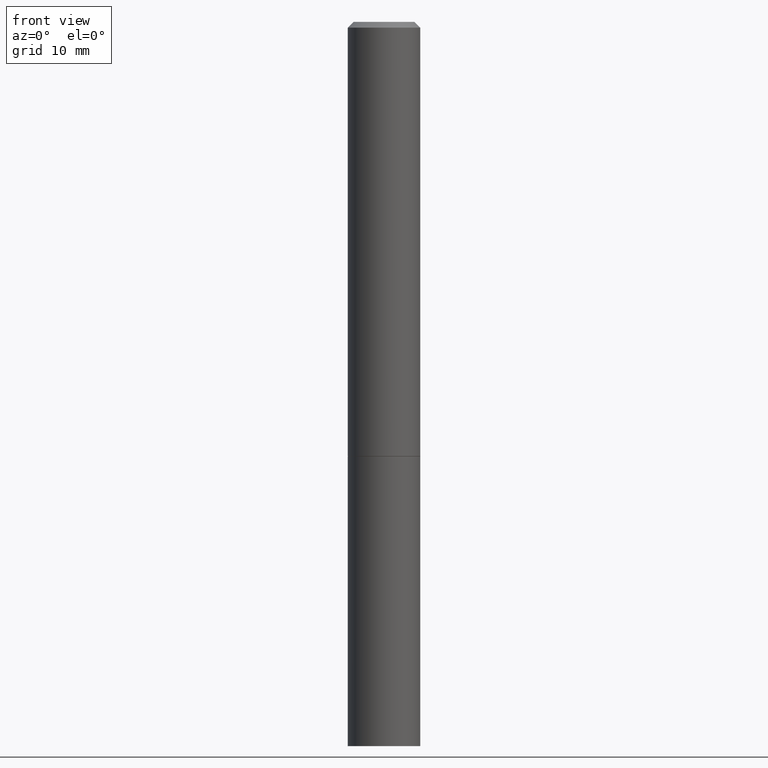
[diagram: clean part render]
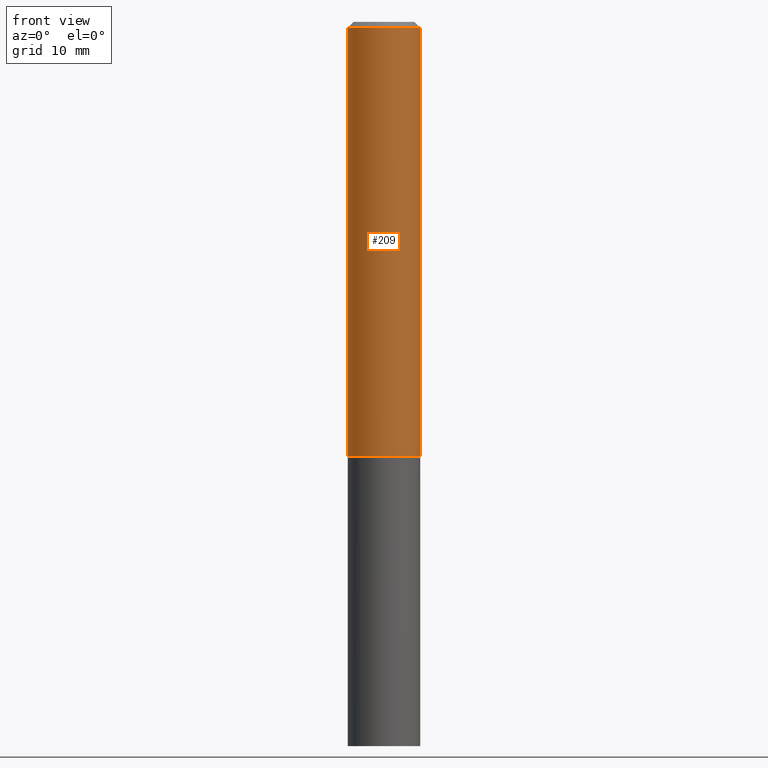
[diagram: same view with one face highlighted and labeled with its STEP entity id]
A machine part, front view. The second image highlights one B-rep face of the part: STEP entity #209.
In plain terms, the highlighted cylindrical surface (edge-blend (fillet) strip) has radius 3.175 mm, axis along (-0, 0, 1).
Its self-contained STEP definition (entity closure, byte-faithful):
#12 = AXIS2_PLACEMENT_3D ( 'NONE', #276, #180, #274 ) ;
#13 = EDGE_CURVE ( 'NONE', #365, #132, #312, .T. ) ;
#19 = ORIENTED_EDGE ( 'NONE', *, *, #326, .T. ) ;
#26 = DIRECTION ( 'NONE',  ( -2.445468806185136877E-29, 3.491481338843145188E-15, 1.000000000000000000 ) ) ;
#56 = CARTESIAN_POINT ( 'NONE',  ( -0.1249999999999999029, 8.881784197001245421E-16, -6.148668862818627323E-30 ) ) ;
#64 = DIRECTION ( 'NONE',  ( 1.000000000000000000, -6.982962677686266711E-15, 4.876176775795935793E-29 ) ) ;
#70 = CIRCLE ( 'NONE', #12, 0.1250000000000000000 ) ;
#88 = CARTESIAN_POINT ( 'NONE',  ( -0.1249999999999998057, 8.030407079339189559E-16, -0.02000000000000004552 ) ) ;
#95 = DIRECTION ( 'NONE',  ( 1.000000000000000000, -6.982962677686267499E-15, 0.000000000000000000 ) ) ;
#100 = VECTOR ( 'NONE', #292, 39.37007874015748143 ) ;
#118 = FACE_OUTER_BOUND ( 'NONE', #192, .T. ) ;
#121 = CARTESIAN_POINT ( 'NONE',  ( 4.890937612370284544E-31, -6.982962677686307633E-17, -0.02000000000000004552 ) ) ;
#123 = CIRCLE ( 'NONE', #329, 0.1249999999999998057 ) ;
#125 = EDGE_CURVE ( 'NONE', #259, #280, #290, .T. ) ;
#132 = VERTEX_POINT ( 'NONE', #88 ) ;
#157 = ORIENTED_EDGE ( 'NONE', *, *, #13, .F. ) ;
#175 = CARTESIAN_POINT ( 'NONE',  ( 0.1249999999999998057, -9.273918764983031658E-16, -0.02000000000000004552 ) ) ;
#180 = DIRECTION ( 'NONE',  ( -2.445468806185136597E-29, 3.491481338843145583E-15, 1.000000000000000000 ) ) ;
#189 = ORIENTED_EDGE ( 'NONE', *, *, #289, .F. ) ;
#192 = EDGE_LOOP ( 'NONE', ( #157, #19, #243, #189 ) ) ;
#209 = ADVANCED_FACE ( 'NONE', ( #118 ), #324, .T. ) ;
#220 = AXIS2_PLACEMENT_3D ( 'NONE', #296, #234, #64 ) ;
#231 = CARTESIAN_POINT ( 'NONE',  ( 0.1250000000000000000, -6.106600861636658508E-15, -1.499000000000000110 ) ) ;
#234 = DIRECTION ( 'NONE',  ( -2.445468806185136597E-29, 3.491481338843145583E-15, 1.000000000000000000 ) ) ;
#243 = ORIENTED_EDGE ( 'NONE', *, *, #125, .T. ) ;
#259 = VERTEX_POINT ( 'NONE', #231 ) ;
#274 = DIRECTION ( 'NONE',  ( 1.000000000000000000, -6.982962677686262766E-15, 0.000000000000000000 ) ) ;
#276 = CARTESIAN_POINT ( 'NONE',  ( 3.665757740471519853E-29, -5.233730526925875958E-15, -1.499000000000000110 ) ) ;
#280 = VERTEX_POINT ( 'NONE', #175 ) ;
#289 = EDGE_CURVE ( 'NONE', #132, #280, #123, .T. ) ;
#290 = LINE ( 'NONE', #345, #100 ) ;
#292 = DIRECTION ( 'NONE',  ( -2.445468806185136877E-29, 3.491481338843145188E-15, 1.000000000000000000 ) ) ;
#296 = CARTESIAN_POINT ( 'NONE',  ( 0.000000000000000000, 0.000000000000000000, 0.000000000000000000 ) ) ;
#302 = CARTESIAN_POINT ( 'NONE',  ( -0.1250000000000000278, -1.763601657151242227E-15, -1.499000000000000110 ) ) ;
#312 = LINE ( 'NONE', #56, #333 ) ;
#324 = CYLINDRICAL_SURFACE ( 'NONE', #220, 0.1249999999999999029 ) ;
#326 = EDGE_CURVE ( 'NONE', #365, #259, #70, .T. ) ;
#329 = AXIS2_PLACEMENT_3D ( 'NONE', #121, #347, #95 ) ;
#333 = VECTOR ( 'NONE', #26, 39.37007874015748143 ) ;
#345 = CARTESIAN_POINT ( 'NONE',  ( 0.1249999999999999029, -8.728703347107826486E-16, 6.095220969744914837E-30 ) ) ;
#347 = DIRECTION ( 'NONE',  ( -2.445468806185136597E-29, 3.491481338843145583E-15, 1.000000000000000000 ) ) ;
#365 = VERTEX_POINT ( 'NONE', #302 ) ;